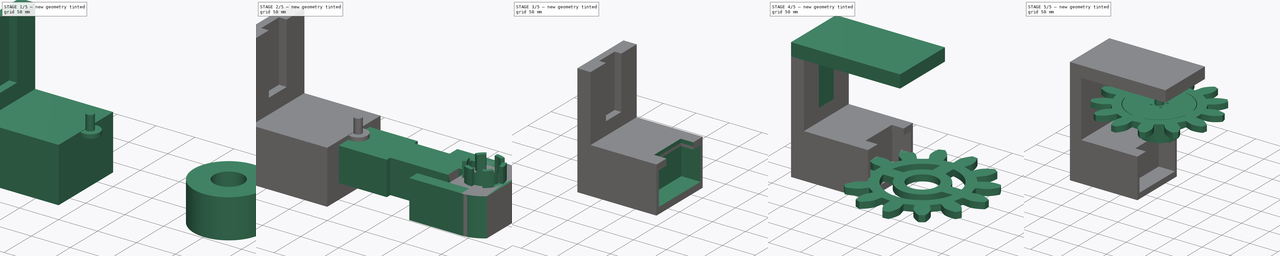
[diagram: build sequence overview — one tinted view per stage of 5, left to right]
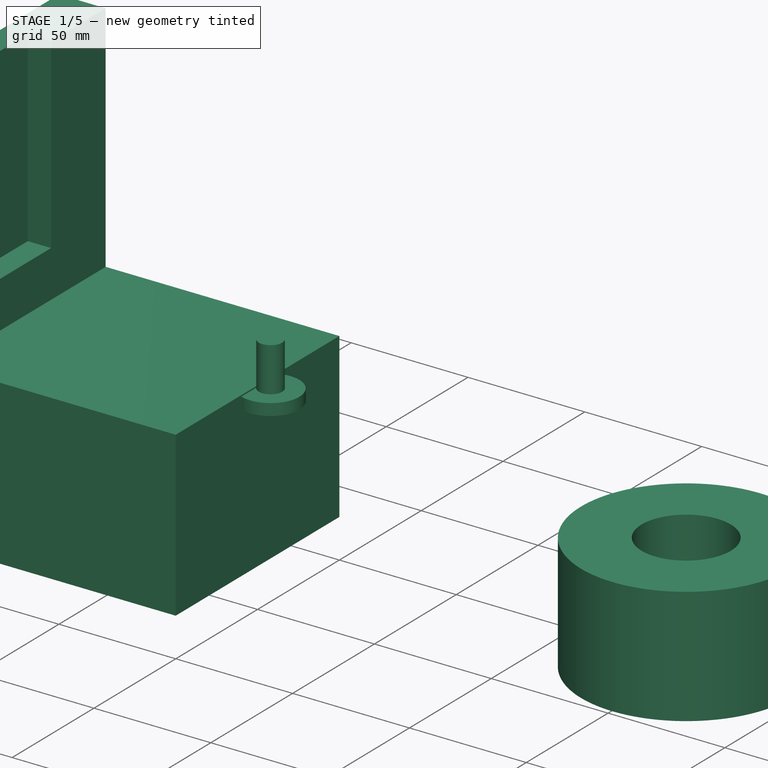
[diagram: stage 1 of 5 — iso view after this stage's code; geometry added in this stage tinted green]
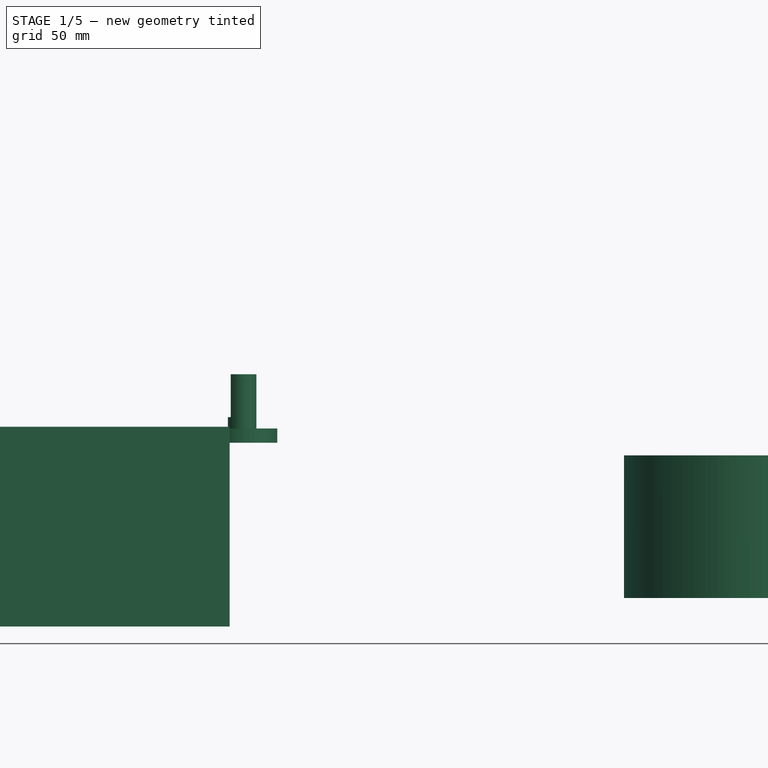
[diagram: stage 1 of 5 — front view after this stage's code; geometry added in this stage tinted green]
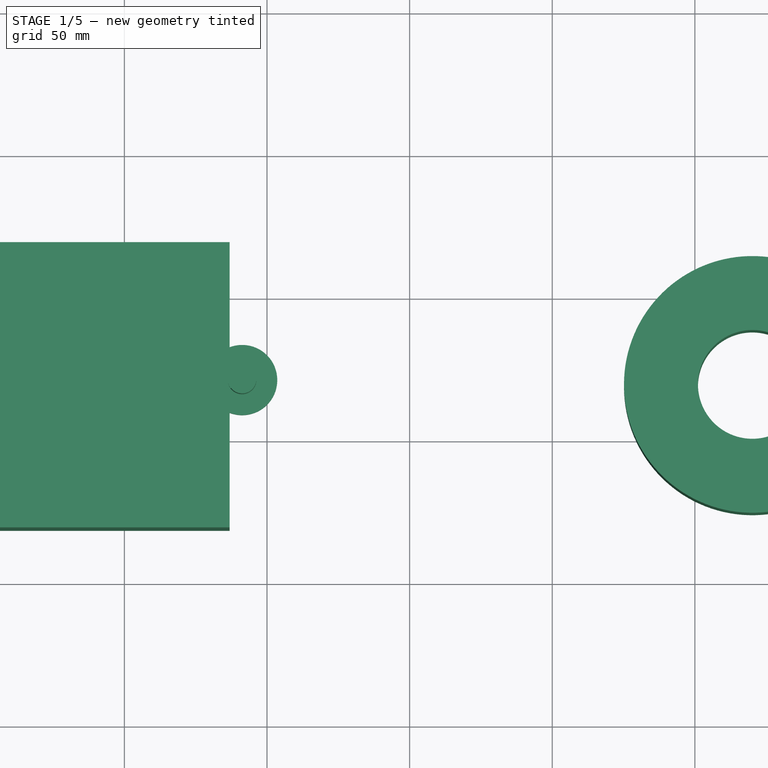
[diagram: stage 1 of 5 — top view after this stage's code; geometry added in this stage tinted green]
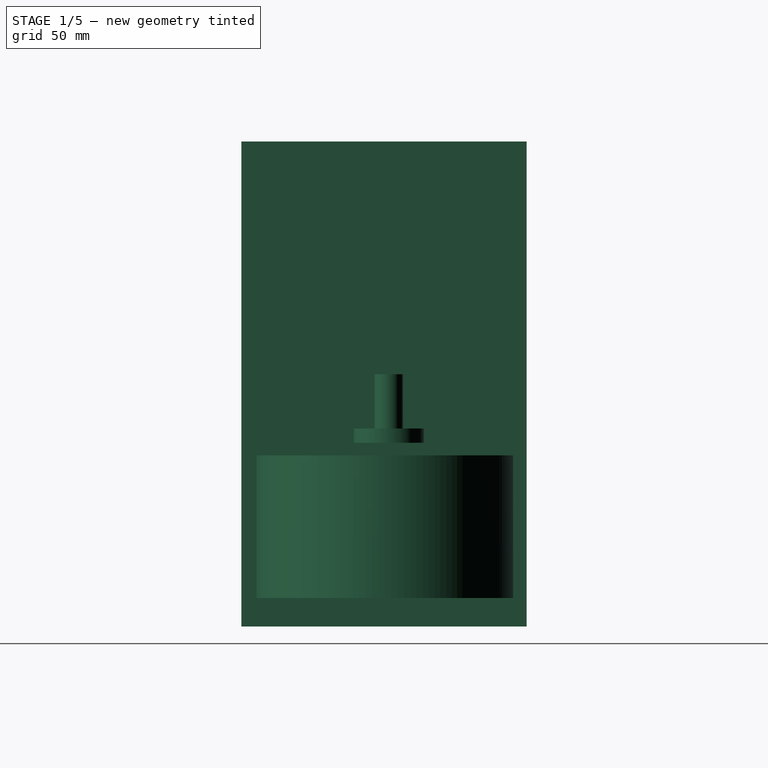
[diagram: stage 1 of 5 — right view after this stage's code; geometry added in this stage tinted green]
FCSTD DOCUMENT  (FreeCAD 0.20R29177 +426 (Git))
Label: PotMount
License: All rights reserved
LicenseURL: http://en.wikipedia.org/wiki/All_rights_reserved
objects: Sketcher::SketchObject×17, Part::Extrusion×16, Part::Box×13, Part::Cut×11, Part::MultiFuse×9, Part::Cylinder×3, Part::FeaturePython×3
note: 72 computed .brp shape members not serialized (recipe doc carries the construction recipe); baked Part::Feature solids carry a one-line shape summary decoded from their .brp

FEATURE [Part::Box] Box001  label="MotorHead"
  AttacherType = Attacher::AttachEngine3D
  Height = 44.4
  Length = 82
  Placement = pos=(-82,-9.63,0) rot=(0,0,1;0rad)
  Width = 58
FEATURE [Sketcher::SketchObject] Sketch010
  ExternalGeometry = -> [Box001]
  FullyConstrained = true
  MapMode = 5
  Placement = pos=(-82,-9.63,44.4) rot=(0,0,1;0rad)
  Support = -> [Box001]
  sketch-geometry (2):
    g0: Circle CenterX=23.3 CenterY=30 CenterZ=0 NormalX=0 NormalY=0 NormalZ=1 AngleXU=0 Radius=12.3
    g1: GeomPoint X=23.3 Y=58 Z=0
  constraints (5):
    c: DistanceX(g0) = 23.3
    c: PointOnObject(g1,g-4)
    c: DistanceX(g-4,g1) = 23.3
    c: DistanceY(g0,g1) = 28
    c: Diameter(g0) = 24.6
FEATURE [Part::Extrusion] Extrude010  label="MotorShaftBasePlate"
  Base = -> Sketch010
  Dir = (0,0,1)
  DirMode = 2
  FaceMakerClass = Part::FaceMakerBullseye
  LengthFwd = 5
  LengthRev = 0
  Solid = true
  Symmetric = false
FEATURE [Sketcher::SketchObject] Sketch001
  ExternalGeometry = -> [Extrude010,Box001]
  FullyConstrained = true
  MapMode = 5
  Placement = pos=(0,0,49.4) rot=(0,0,1;0rad)
  Support = -> [Extrude010]
  sketch-geometry (3):
    g0: GeomPoint X=-82 Y=20.37 Z=0
    g1: GeomPoint X=-58.7 Y=48.37 Z=0
    g2: Circle CenterX=-58.7 CenterY=20.37 CenterZ=0 NormalX=0 NormalY=0 NormalZ=1 AngleXU=0 Radius=5
  constraints (6):
    c: PointOnObject(g0,g-4)
    c: PointOnObject(g1,g-5)
    c: DistanceY(g0,g-5) = 28
    c: DistanceX(g-5,g1) = 23.3
    c: Diameter(g2) = 10
    c: Coincident(g2,g-3)
FEATURE [Part::Extrusion] Extrude001  label="MotorShaftFull"
  Base = -> Sketch001
  Dir = (0,0,1)
  DirMode = 2
  FaceMakerClass = Part::FaceMakerBullseye
  LengthFwd = 4
  LengthRev = 0
  Solid = true
  Symmetric = false
FEATURE [Sketcher::SketchObject] Sketch002
  ExternalGeometry = -> [Extrude001]
  FullyConstrained = true
  MapMode = 5
  Placement = pos=(0,0,53.4) rot=(0,0,1;0rad)
  Support = -> [Extrude001]
  sketch-geometry (2):
    g0: LineSegment StartX=-62.7 StartY=23.37 StartZ=0 EndX=-62.7 EndY=17.37 EndZ=0
    g1: ArcOfCircle CenterX=-58.7 CenterY=20.37 CenterZ=0 NormalX=0 NormalY=0 NormalZ=1 AngleXU=0 Radius=5 StartAngle=3.78509 EndAngle=8.78128
  constraints (6):
    c: PointOnObject(g0,g-3)
    c: Vertical(g0)
    c: Coincident(g1,g-3)
    c: Coincident(g1,g0)
    c: Coincident(g1,g0)
    c: DistanceX(g0,g1) = 4
FEATURE [Part::Extrusion] Extrude002  label="MotorShaftD"
  Base = -> Sketch002
  Dir = (0,0,1)
  DirMode = 2
  FaceMakerClass = Part::FaceMakerBullseye
  LengthFwd = 15
  LengthRev = 0
  Solid = true
  Symmetric = false
FEATURE [Part::MultiFuse] Fusion002  label="MotorShaftAssembly"
  Shapes = -> [Extrude010,Extrude001,Extrude002]
FEATURE [Part::FeaturePython] Tube  label="SteeringShaftMount"  # WARN: FeaturePython — macro-defined, semantics opaque (R4)
  AttacherType = Attacher::AttachEngine3D
  Height = 50
  InnerRadius = 19.07
  OuterRadius = 45
  Placement = pos=(120.15,19,-10) rot=(0,0,1;0rad)
FEATURE [Part::Box] Box017  label="Cube"
  AttacherType = Attacher::AttachEngine3D
  Height = 70
  Length = 120
  Placement = pos=(-183.1,-31.3,-20) rot=(0,0,1;0rad)
  Width = 100
FEATURE [Sketcher::SketchObject] Sketch
  FullyConstrained = true
  MapMode = 5
  Placement = pos=(-183.1,-31.3,50) rot=(0,0,1;0rad)
  Support = -> [Box017]
  sketch-geometry (4):
    g0: LineSegment StartX=20 StartY=0 StartZ=0 EndX=20 EndY=100 EndZ=0
    g1: LineSegment StartX=20 StartY=100 StartZ=0 EndX=0 EndY=100 EndZ=0
    g2: LineSegment StartX=0 StartY=100 StartZ=0 EndX=0 EndY=0 EndZ=0
    g3: LineSegment StartX=0 StartY=0 StartZ=0 EndX=20 EndY=0 EndZ=0
  constraints (11):
    c: PointOnObject(g0,g-1)
    c: Vertical(g0)
    c: Coincident(g1,g0)
    c: PointOnObject(g1,g-2)
    c: Horizontal(g1)
    c: Distance(g1) = 20
    c: Distance(g0) = 100
    c: Coincident(g2,g1)
    c: Coincident(g2,g-1)
    c: Coincident(g3,g2)
    c: Coincident(g3,g0)
FEATURE [Part::Extrusion] Extrude
  Base = -> Sketch
  Dir = (0,0,1)
  DirMode = 2
  FaceMakerClass = Part::FaceMakerBullseye
  LengthFwd = 100
  LengthRev = 0
  Solid = true
  Symmetric = false
FEATURE [Sketcher::SketchObject] Sketch016
  ExternalGeometry = -> [Extrude]
  FullyConstrained = true
  MapMode = 5
  Placement = pos=(0,0,150) rot=(0,0,1;0rad)
  Support = -> [Extrude]
  sketch-geometry (6):
    g0: LineSegment StartX=-163.1 StartY=2.03333 StartZ=0 EndX=-163.1 EndY=-31.3 EndZ=0
    g1: LineSegment StartX=-163.1 StartY=68.7 StartZ=0 EndX=-163.1 EndY=35.3667 EndZ=0
    g2: LineSegment StartX=-163.1 StartY=35.3667 StartZ=0 EndX=-163.1 EndY=2.03333 EndZ=0
    g3: LineSegment StartX=-163.1 StartY=35.3667 StartZ=0 EndX=-173.1 EndY=35.3667 EndZ=0
    g4: LineSegment StartX=-173.1 StartY=35.3667 StartZ=0 EndX=-173.1 EndY=2.03333 EndZ=0
    g5: LineSegment StartX=-173.1 StartY=2.03333 StartZ=0 EndX=-163.1 EndY=2.03333 EndZ=0
  constraints (16):
    c: Coincident(g1,g-3)
    c: Coincident(g0,g-3)
    c: Coincident(g2,g0)
    c: Coincident(g1,g2)
    c: Equal(g1,g2)
    c: Equal(g0,g2)
    c: Parallel(g1,g2)
    c: Parallel(g2,g0)
    c: Coincident(g3,g1)
    c: Horizontal(g3)
    c: Coincident(g4,g3)
    c: Vertical(g4)
    c: Coincident(g5,g4)
    c: Coincident(g5,g0)
    c: Perpendicular(g5,g4)
    c: Distance(g5) = 10
FEATURE [Part::Extrusion] Extrude016
  Base = -> Sketch016
  Dir = (0,0,1)
  DirMode = 2
  FaceMakerClass = Part::FaceMakerBullseye
  LengthFwd = 0
  LengthRev = 80
  Solid = true
  Symmetric = false
FEATURE [Part::Cut] Cut015
  Base = -> Extrude
  Tool = -> Extrude016
FEATURE [Part::MultiFuse] Fusion013
  Shapes = -> [Box017,Cut015]
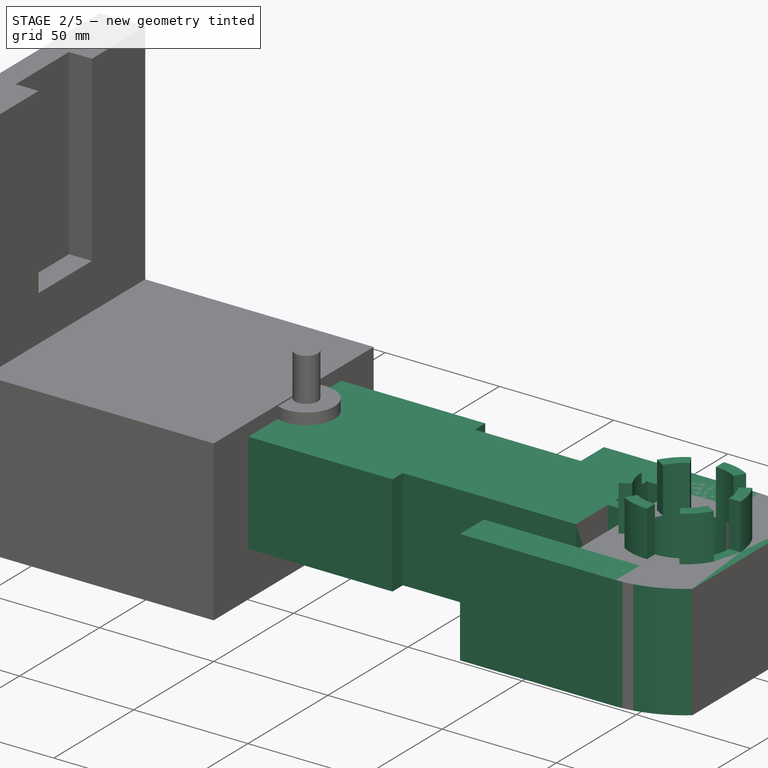
[diagram: stage 2 of 5 — iso view after this stage's code; geometry added in this stage tinted green]
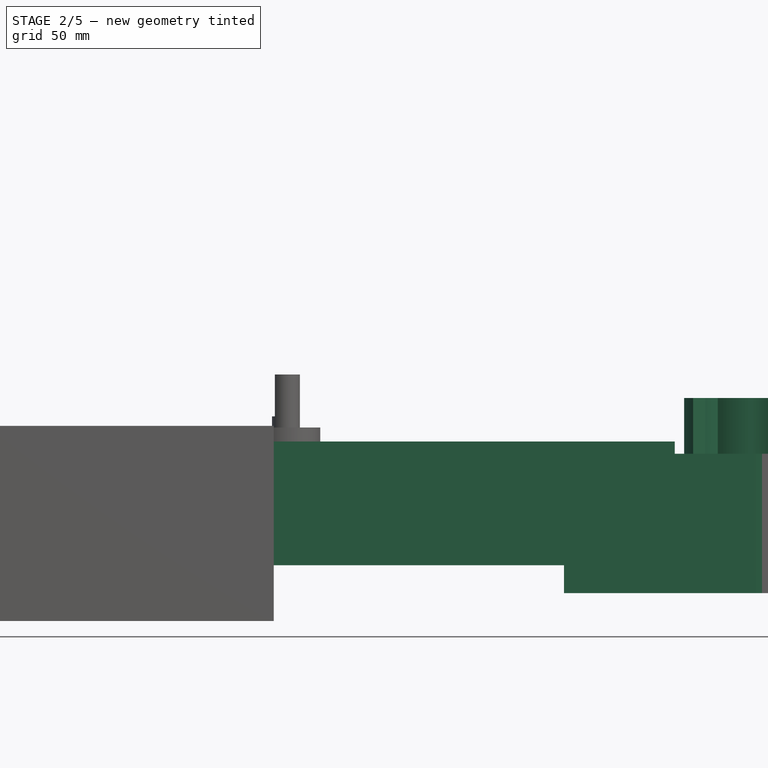
[diagram: stage 2 of 5 — front view after this stage's code; geometry added in this stage tinted green]
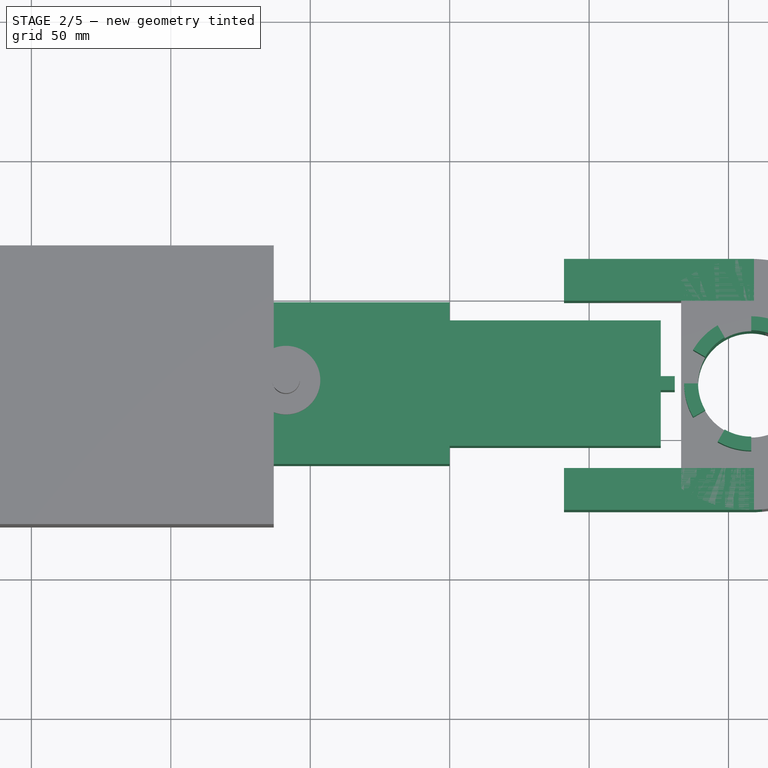
[diagram: stage 2 of 5 — top view after this stage's code; geometry added in this stage tinted green]
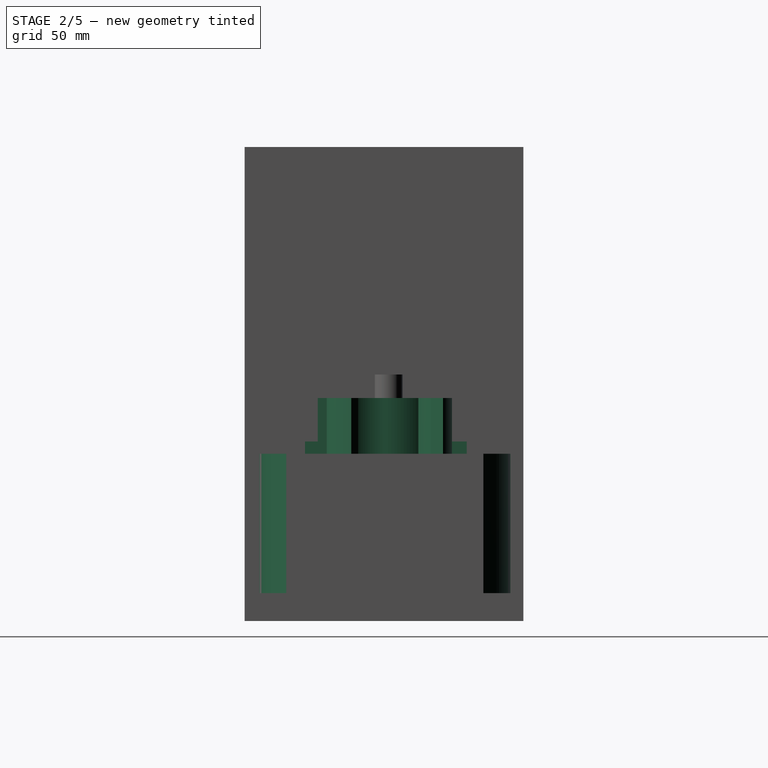
[diagram: stage 2 of 5 — right view after this stage's code; geometry added in this stage tinted green]
FEATURE [Part::Box] Box  label="MotorCyclinder"
  AttacherType = Attacher::AttachEngine3D
  Height = 44.4
  Length = 75.7
  Placement = pos=(0,-3.13,0) rot=(0,0,1;0rad)
  Width = 45
FEATURE [Part::Box] Box008  label="Cube008"
  AttacherType = Attacher::AttachEngine3D
  Height = 50
  Length = 68.15
  Placement = pos=(41,-26,-10) rot=(0,0,1;0rad)
  Width = 15
FEATURE [Part::Box] Box009  label="Cube009"
  AttacherType = Attacher::AttachEngine3D
  Height = 50
  Length = 68.15
  Placement = pos=(41,49,-10) rot=(0,0,1;0rad)
  Width = 15
FEATURE [Part::Box] Box010  label="RoundOff"
  AttacherType = Attacher::AttachEngine3D
  Height = 60
  Length = 40
  Placement = pos=(55,-34,-17) rot=(0,0,1;0rad)
  Width = 120
FEATURE [Part::Box] Box011  label="NubChannel"
  AttacherType = Attacher::AttachEngine3D
  Height = 44.4
  Length = 5
  Placement = pos=(75.7,16.87,0) rot=(0,0,1;0rad)
  Width = 5
FEATURE [Part::Box] Box012  label="SteeringShaftCutter"
  AttacherType = Attacher::AttachEngine3D
  Height = 70
  Length = 30
  Placement = pos=(136,-31,-14) rot=(0,0,1;0rad)
  Width = 100
FEATURE [Part::MultiFuse] Fusion005  label="Motor"
  Shapes = -> [Box,Box001,Box011,Fusion002]
FEATURE [Part::Cut] Cut005  label="SteeringShaftMountD"
  Base = -> Tube
  Tool = -> Box010
FEATURE [Sketcher::SketchObject] Sketch003
  ExternalGeometry = -> [Tube]
  FullyConstrained = true
  MapMode = 5
  Placement = pos=(120.15,19,40) rot=(0,0,1;0rad)
  Support = -> [Tube]
  sketch-geometry (42):
    g0: Circle CenterX=0 CenterY=2.9e-15 CenterZ=0 NormalX=0 NormalY=0 NormalZ=1 AngleXU=0 Radius=24.075
    g1: ArcOfCircle CenterX=0 CenterY=2.9e-15 CenterZ=0 NormalX=0 NormalY=0 NormalZ=1 AngleXU=0 Radius=24.075 StartAngle=1.0472 EndAngle=1.5708
    g2: LineSegment StartX=0 StartY=2.9e-15 StartZ=0 EndX=12.0375 EndY=20.8496 EndZ=0
    g3: LineSegment StartX=0 StartY=2.9e-15 StartZ=0 EndX=0 EndY=24.075 EndZ=0
    g4: ArcOfCircle CenterX=0 CenterY=2.9e-15 CenterZ=0 NormalX=0 NormalY=0 NormalZ=1 AngleXU=0 Radius=19.075 StartAngle=1.0472 EndAngle=1.5708
    g5: LineSegment StartX=0 StartY=24.075 StartZ=0 EndX=1.2e-15 EndY=19.075 EndZ=0
    g6: LineSegment StartX=12.0375 StartY=20.8496 StartZ=0 EndX=9.5375 EndY=16.5194 EndZ=0
    g7: ArcOfCircle CenterX=0 CenterY=2.9e-15 CenterZ=0 NormalX=0 NormalY=0 NormalZ=1 AngleXU=0 Radius=24.075 StartAngle=0.523599 EndAngle=1.0472
    g8: ArcOfCircle CenterX=0 CenterY=2.9e-15 CenterZ=0 NormalX=0 NormalY=0 NormalZ=1 AngleXU=0 Radius=24.075 StartAngle=0 EndAngle=0.523599
    g9: LineSegment StartX=0 StartY=2.9e-15 StartZ=0 EndX=20.8496 EndY=12.0375 EndZ=0
    g10: LineSegment StartX=0 StartY=2.9e-15 StartZ=0 EndX=24.075 EndY=-2.9e-15 EndZ=0
    g11: ArcOfCircle CenterX=0 CenterY=2.9e-15 CenterZ=0 NormalX=0 NormalY=0 NormalZ=1 AngleXU=0 Radius=19.07 StartAngle=0 EndAngle=0.523599
    g12: LineSegment StartX=19.07 StartY=2.9e-15 StartZ=0 EndX=24.075 EndY=-2.9e-15 EndZ=0
    g13: LineSegment StartX=16.5151 StartY=9.535 StartZ=0 EndX=20.8496 EndY=12.0375 EndZ=0
    g14: ArcOfCircle CenterX=0 CenterY=2.9e-15 CenterZ=0 NormalX=0 NormalY=0 NormalZ=1 AngleXU=0 Radius=24.075 StartAngle=5.75959 EndAngle=6.28319
    g15: ArcOfCircle CenterX=0 CenterY=2.9e-15 CenterZ=0 NormalX=0 NormalY=0 NormalZ=1 AngleXU=0 Radius=24.075 StartAngle=5.23599 EndAngle=5.75959
    g16: LineSegment StartX=12.0375 StartY=-20.8496 StartZ=0 EndX=0 EndY=3.6e-15 EndZ=0
    g17: LineSegment StartX=0 StartY=2.9e-15 StartZ=0 EndX=20.8496 EndY=-12.0375 EndZ=0
    g18: ArcOfCircle CenterX=0 CenterY=2.9e-15 CenterZ=0 NormalX=0 NormalY=0 NormalZ=1 AngleXU=0 Radius=19.075 StartAngle=5.23599 EndAngle=5.75959
    g19: LineSegment StartX=9.5375 StartY=-16.5194 StartZ=0 EndX=12.0375 EndY=-20.8496 EndZ=0
    g20: LineSegment StartX=16.5194 StartY=-9.5375 StartZ=0 EndX=20.8496 EndY=-12.0375 EndZ=0
    g21: ArcOfCircle CenterX=0 CenterY=2.9e-15 CenterZ=0 NormalX=0 NormalY=0 NormalZ=1 AngleXU=0 Radius=24.075 StartAngle=4.71239 EndAngle=5.23599
    g22: ArcOfCircle CenterX=0 CenterY=2.9e-15 CenterZ=0 NormalX=0 NormalY=0 NormalZ=1 AngleXU=0 Radius=24.075 StartAngle=4.18879 EndAngle=4.71239
    g23: LineSegment StartX=0 StartY=2.9e-15 StartZ=0 EndX=-4.4e-15 EndY=-24.075 EndZ=0
    g24: LineSegment StartX=0 StartY=2.9e-15 StartZ=0 EndX=-12.0375 EndY=-20.8496 EndZ=0
    g25: ArcOfCircle CenterX=0 CenterY=2.9e-15 CenterZ=0 NormalX=0 NormalY=0 NormalZ=1 AngleXU=0 Radius=19.07 StartAngle=4.18879 EndAngle=4.71239
    g26: LineSegment StartX=-12.0375 StartY=-20.8496 StartZ=0 EndX=-9.535 EndY=-16.5151 EndZ=0
    g27: LineSegment StartX=-3.5e-15 StartY=-19.07 StartZ=0 EndX=-4.4e-15 EndY=-24.075 EndZ=0
    g28: ArcOfCircle CenterX=0 CenterY=2.9e-15 CenterZ=0 NormalX=0 NormalY=0 NormalZ=1 AngleXU=0 Radius=24.075 StartAngle=3.66519 EndAngle=4.18879
    g29: ArcOfCircle CenterX=0 CenterY=2.9e-15 CenterZ=0 NormalX=0 NormalY=0 NormalZ=1 AngleXU=0 Radius=24.075 StartAngle=3.14159 EndAngle=3.66519
    g30: LineSegment StartX=-20.8496 StartY=-12.0375 StartZ=0 EndX=0 EndY=3.6e-15 EndZ=0
    g31: LineSegment StartX=0 StartY=2.9e-15 StartZ=0 EndX=-24.075 EndY=2.9e-15 EndZ=0
    g32: ArcOfCircle CenterX=0 CenterY=2.9e-15 CenterZ=0 NormalX=0 NormalY=0 NormalZ=1 AngleXU=0 Radius=19.07 StartAngle=3.14159 EndAngle=3.66519
    g33: LineSegment StartX=-19.07 StartY=2.9e-15 StartZ=0 EndX=-24.075 EndY=2.9e-15 EndZ=0
    g34: LineSegment StartX=-20.8496 StartY=-12.0375 StartZ=0 EndX=-16.5151 EndY=-9.535 EndZ=0
    g35: ArcOfCircle CenterX=0 CenterY=2.9e-15 CenterZ=0 NormalX=0 NormalY=0 NormalZ=1 AngleXU=0 Radius=24.075 StartAngle=2.61799 EndAngle=3.14159
    g36: ArcOfCircle CenterX=0 CenterY=2.9e-15 CenterZ=0 NormalX=0 NormalY=0 NormalZ=1 AngleXU=0 Radius=24.075 StartAngle=2.0944 EndAngle=2.61799
    g37: LineSegment StartX=0 StartY=2.9e-15 StartZ=0 EndX=-12.0375 EndY=20.8496 EndZ=0
    g38: LineSegment StartX=-20.8496 StartY=12.0375 StartZ=0 EndX=0 EndY=3.6e-15 EndZ=0
    g39: ArcOfCircle CenterX=0 CenterY=2.9e-15 CenterZ=0 NormalX=0 NormalY=0 NormalZ=1 AngleXU=0 Radius=19.075 StartAngle=2.0944 EndAngle=2.61799
    g40: LineSegment StartX=-16.5194 StartY=9.5375 StartZ=0 EndX=-20.8496 EndY=12.0375 EndZ=0
    g41: LineSegment StartX=-12.0375 StartY=20.8496 StartZ=0 EndX=-9.5375 EndY=16.5194 EndZ=0
  constraints (109):
    c: Coincident(g0,g-4)
    c: Radius(g0) = 24.075
    c: Coincident(g1,g0)
    c: PointOnObject(g1,g0)
    c: Angle(g1) = 0.523599
    c: Coincident(g2,g0)
    c: Coincident(g2,g1)
    c: Coincident(g3,g0)
    c: Coincident(g3,g1)
    c: Vertical(g3)
    c: Coincident(g4,g0)
    c: PointOnObject(g4,g3)
    c: PointOnObject(g4,g2)
    c: Radius(g4) = 19.075
    c: Coincident(g5,g1)
    c: Coincident(g5,g4)
    c: Coincident(g6,g1)
    c: Coincident(g6,g4)
    c: Coincident(g7,g0)
    c: Coincident(g7,g1)
    c: Angle(g7) = 0.523599
    c: Coincident(g8,g0)
    c: Coincident(g8,g7)
    c: Angle(g8) = 0.523599
    c: Coincident(g9,g0)
    c: Coincident(g9,g7)
    c: Coincident(g10,g0)
    c: Coincident(g10,g8)
    c: Coincident(g11,g0)
    c: PointOnObject(g11,g-3)
    c: Angle(g11) = 0.523599
    c: PointOnObject(g11,g9)
    c: Coincident(g12,g11)
    c: Coincident(g12,g8)
    c: Coincident(g13,g11)
    c: Coincident(g13,g7)
    c: Coincident(g14,g0)
    c: Coincident(g14,g8)
    c: Angle(g14) = 0.523599
    c: Coincident(g15,g0)
    c: Coincident(g15,g14)
    c: Angle(g15) = 0.523599
    c: Coincident(g16,g15)
    c: Coincident(g16,g0)
    c: Coincident(g17,g0)
    c: Coincident(g17,g14)
    c: Coincident(g18,g0)
    c: PointOnObject(g18,g17)
    c: PointOnObject(g18,g16)
    c: Radius(g18) = 19.075
    c: Coincident(g19,g18)
    c: Coincident(g19,g15)
    c: Coincident(g20,g18)
    c: Coincident(g20,g14)
    c: Coincident(g21,g0)
    c: Coincident(g21,g15)
    c: Angle(g21) = 0.523599
    c: Coincident(g22,g0)
    c: Coincident(g22,g21)
    c: Angle(g22) = 0.523599
    c: Coincident(g23,g0)
    c: Coincident(g23,g21)
    c: Coincident(g24,g0)
    c: Coincident(g24,g22)
    c: Coincident(g25,g0)
    c: PointOnObject(g25,g23)
    c: PointOnObject(g25,g-3)
    c: Angle(g25) = 0.523599
    c: Coincident(g26,g22)
    c: Coincident(g26,g25)
    c: Coincident(g27,g25)
    c: Coincident(g27,g21)
    c: Coincident(g28,g0)
    c: PointOnObject(g28,g22)
    c: Angle(g28) = 0.523599
    c: Coincident(g29,g0)
    c: Coincident(g29,g28)
    c: Angle(g29) = 0.523599
    c: Coincident(g30,g28)
    c: Coincident(g30,g0)
    c: Coincident(g31,g0)
    c: Coincident(g31,g29)
    c: Horizontal(g31)
    c: Coincident(g32,g0)
    c: PointOnObject(g32,g-3)
    c: Coincident(g33,g32)
    c: Coincident(g33,g29)
    c: Horizontal(g33)
    c: Coincident(g34,g28)
    c: Coincident(g34,g32)
    c: Angle(g32) = 0.523599
    c: Coincident(g35,g0)
    c: Coincident(g35,g29)
    c: Angle(g35) = 0.523599
    c: Coincident(g36,g0)
    c: Coincident(g36,g35)
    c: Angle(g36) = 0.523599
    c: Coincident(g37,g0)
    c: Coincident(g37,g36)
    c: Coincident(g38,g35)
    c: Coincident(g38,g0)
    c: Coincident(g39,g0)
    c: PointOnObject(g39,g38)
    c: PointOnObject(g39,g37)
    c: Radius(g39) = 19.075
    c: Coincident(g40,g39)
    c: Coincident(g40,g35)
    c: Coincident(g41,g36)
    c: Coincident(g41,g39)
FEATURE [Sketcher::SketchObject] Sketch004
  ExternalGeometry = -> [Sketch003]
  FullyConstrained = true
  MapMode = 5
  Placement = pos=(120.15,19,40) rot=(0,0,1;0rad)
  Support = -> [Tube]
  sketch-geometry (24):
    g0: LineSegment StartX=16.5194 StartY=-9.5375 StartZ=0 EndX=20.8496 EndY=-12.0375 EndZ=0
    g1: ArcOfCircle CenterX=0 CenterY=0 CenterZ=0 NormalX=0 NormalY=0 NormalZ=1 AngleXU=0 Radius=19.075 StartAngle=5.23599 EndAngle=5.75959
    g2: ArcOfCircle CenterX=0 CenterY=0 CenterZ=0 NormalX=0 NormalY=0 NormalZ=1 AngleXU=0 Radius=24.075 StartAngle=5.23599 EndAngle=5.75959
    g3: LineSegment StartX=12.0375 StartY=-20.8496 StartZ=0 EndX=9.5375 EndY=-16.5194 EndZ=0
    g4: LineSegment StartX=-4.4e-15 StartY=-24.075 StartZ=0 EndX=-3.5e-15 EndY=-19.07 EndZ=0
    g5: LineSegment StartX=-9.535 StartY=-16.5151 StartZ=0 EndX=-12.0375 EndY=-20.8496 EndZ=0
    g6: LineSegment StartX=-20.8496 StartY=-12.0375 StartZ=0 EndX=-16.5151 EndY=-9.535 EndZ=0
    g7: LineSegment StartX=-19.07 StartY=2.3e-15 StartZ=0 EndX=-24.075 EndY=2.9e-15 EndZ=0
    g8: LineSegment StartX=-16.5194 StartY=9.5375 StartZ=0 EndX=-20.8496 EndY=12.0375 EndZ=0
    g9: LineSegment StartX=-12.0375 StartY=20.8496 StartZ=0 EndX=-9.5375 EndY=16.5194 EndZ=0
    g10: LineSegment StartX=1.5e-15 StartY=24.075 StartZ=0 EndX=1.2e-15 EndY=19.075 EndZ=0
    g11: LineSegment StartX=9.5375 StartY=16.5194 StartZ=0 EndX=12.0375 EndY=20.8496 EndZ=0
    g12: LineSegment StartX=16.5151 StartY=9.535 StartZ=0 EndX=20.8496 EndY=12.0375 EndZ=0
    g13: LineSegment StartX=19.07 StartY=0 StartZ=0 EndX=24.075 EndY=0 EndZ=0
    g14: ArcOfCircle CenterX=0 CenterY=0 CenterZ=0 NormalX=0 NormalY=0 NormalZ=1 AngleXU=0 Radius=19.07 StartAngle=4.18879 EndAngle=4.71239
    g15: ArcOfCircle CenterX=0 CenterY=0 CenterZ=0 NormalX=0 NormalY=0 NormalZ=1 AngleXU=0 Radius=24.075 StartAngle=4.18879 EndAngle=4.71239
    g16: ArcOfCircle CenterX=0 CenterY=0 CenterZ=0 NormalX=0 NormalY=0 NormalZ=1 AngleXU=0 Radius=24.075 StartAngle=3.14159 EndAngle=3.66519
    g17: ArcOfCircle CenterX=0 CenterY=0 CenterZ=0 NormalX=0 NormalY=0 NormalZ=1 AngleXU=0 Radius=19.07 StartAngle=3.14159 EndAngle=3.66519
    g18: ArcOfCircle CenterX=0 CenterY=0 CenterZ=0 NormalX=0 NormalY=0 NormalZ=1 AngleXU=0 Radius=19.075 StartAngle=2.0944 EndAngle=2.61799
    g19: ArcOfCircle CenterX=0 CenterY=0 CenterZ=0 NormalX=0 NormalY=0 NormalZ=1 AngleXU=0 Radius=24.075 StartAngle=2.0944 EndAngle=2.61799
    g20: ArcOfCircle CenterX=0 CenterY=0 CenterZ=0 NormalX=0 NormalY=0 NormalZ=1 AngleXU=0 Radius=24.075 StartAngle=1.0472 EndAngle=1.5708
    g21: ArcOfCircle CenterX=0 CenterY=0 CenterZ=0 NormalX=0 NormalY=0 NormalZ=1 AngleXU=0 Radius=19.075 StartAngle=1.0472 EndAngle=1.5708
    g22: ArcOfCircle CenterX=0 CenterY=0 CenterZ=0 NormalX=0 NormalY=0 NormalZ=1 AngleXU=0 Radius=19.07 StartAngle=0 EndAngle=0.523599
    g23: ArcOfCircle CenterX=0 CenterY=0 CenterZ=0 NormalX=0 NormalY=0 NormalZ=1 AngleXU=0 Radius=24.075 StartAngle=0 EndAngle=0.523599
  constraints (60):
    c: Coincident(g0,g-14)
    c: Coincident(g0,g-8)
    c: Coincident(g1,g-16)
    c: Coincident(g1,g0)
    c: Coincident(g1,g-21)
    c: Coincident(g2,g1)
    c: Coincident(g2,g0)
    c: Coincident(g2,g-21)
    c: Coincident(g3,g2)
    c: Coincident(g3,g1)
    c: Coincident(g4,g-22)
    c: Coincident(g4,g-22)
    c: Coincident(g5,g-20)
    c: Coincident(g5,g-20)
    c: PointOnObject(g6,g-19)
    c: Coincident(g6,g-19)
    c: Coincident(g7,g-23)
    c: Coincident(g7,g-23)
    c: Coincident(g8,g-18)
    c: Coincident(g8,g-18)
    c: Coincident(g9,g-17)
    c: Coincident(g9,g-17)
    c: Coincident(g10,g-6)
    c: Coincident(g10,g-4)
    c: Coincident(g11,g-5)
    c: Coincident(g11,g-6)
    c: Coincident(g12,g-24)
    c: Coincident(g12,g-24)
    c: Coincident(g13,g-13)
    c: Coincident(g13,g-7)
    c: Coincident(g14,g1)
    c: Coincident(g14,g5)
    c: Coincident(g14,g4)
    c: Coincident(g15,g1)
    c: Coincident(g15,g5)
    c: Coincident(g15,g4)
    c: Coincident(g16,g1)
    c: Coincident(g16,g6)
    c: Coincident(g16,g7)
    c: Coincident(g17,g1)
    c: Coincident(g17,g6)
    c: Coincident(g17,g7)
    c: Coincident(g18,g1)
    c: Coincident(g18,g8)
    c: Coincident(g18,g9)
    c: Coincident(g19,g1)
    c: Coincident(g19,g8)
    c: Coincident(g19,g9)
    c: Coincident(g20,g1)
    c: Coincident(g20,g10)
    c: Coincident(g20,g11)
    c: Coincident(g21,g1)
    c: Coincident(g21,g10)
    c: Coincident(g21,g11)
    c: Coincident(g22,g1)
    c: Coincident(g22,g12)
    c: Coincident(g22,g13)
    c: Coincident(g23,g1)
    c: Coincident(g23,g12)
    c: Coincident(g23,g13)
FEATURE [Part::Extrusion] Extrude003  label="Fingers"
  Base = -> Sketch004
  Dir = (0,0,1)
  DirMode = 2
  FaceMakerClass = Part::FaceMakerBullseye
  LengthFwd = 25
  LengthRev = 0
  Placement = pos=(0,0,-5) rot=(0,0,1;0rad)
  Solid = true
  Symmetric = false
FEATURE [Part::MultiFuse] Fusion004
  Placement = pos=(-12,0,0) rot=(0,0,1;0rad)
  Shapes = -> [Cut005,Extrude003]
FEATURE [Part::Cut] Cut006  label="SteeringShaftCutDown"
  Base = -> Fusion004
  Tool = -> Box012
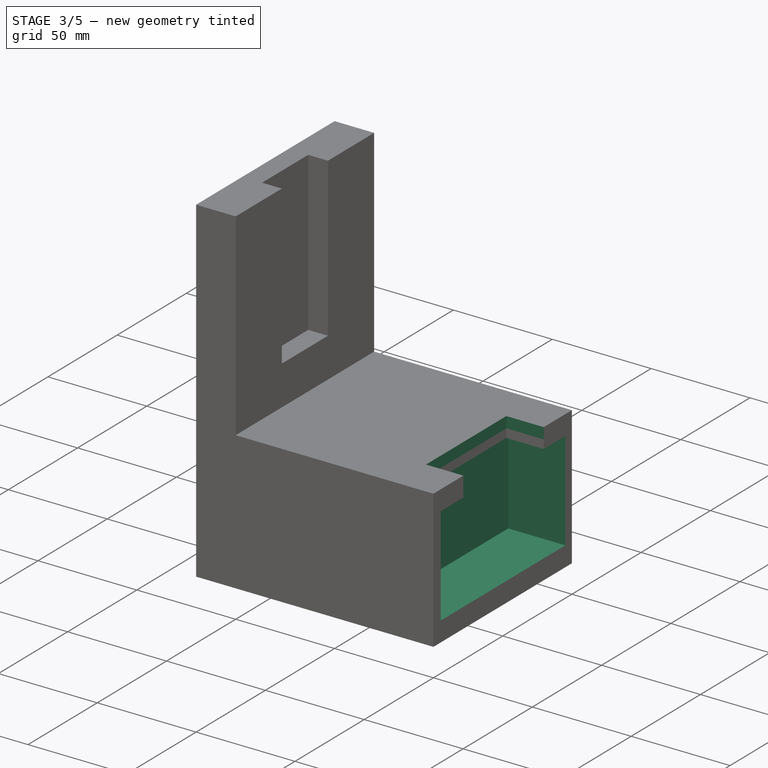
[diagram: stage 3 of 5 — iso view after this stage's code; geometry added in this stage tinted green]
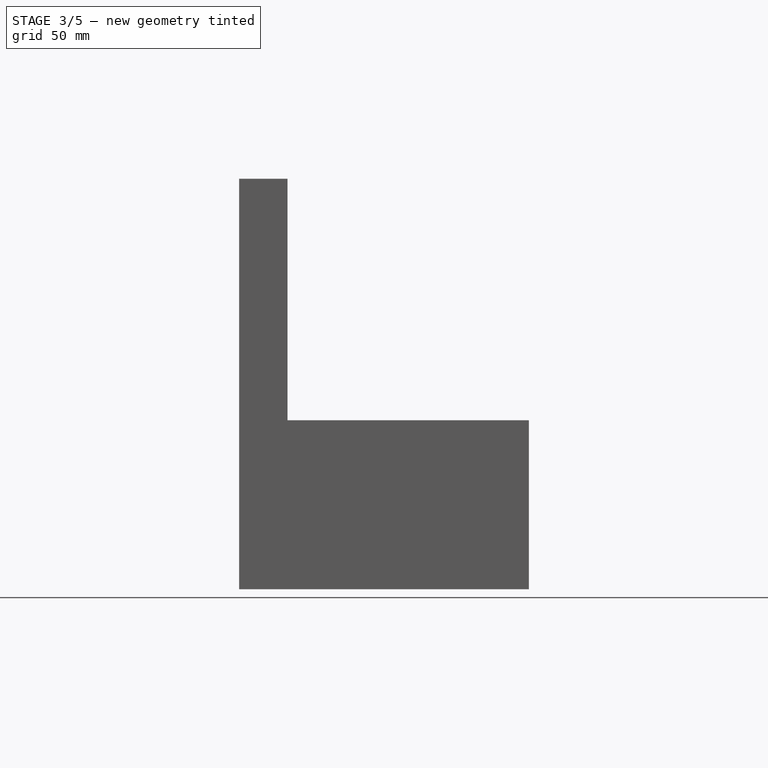
[diagram: stage 3 of 5 — front view after this stage's code; geometry added in this stage tinted green]
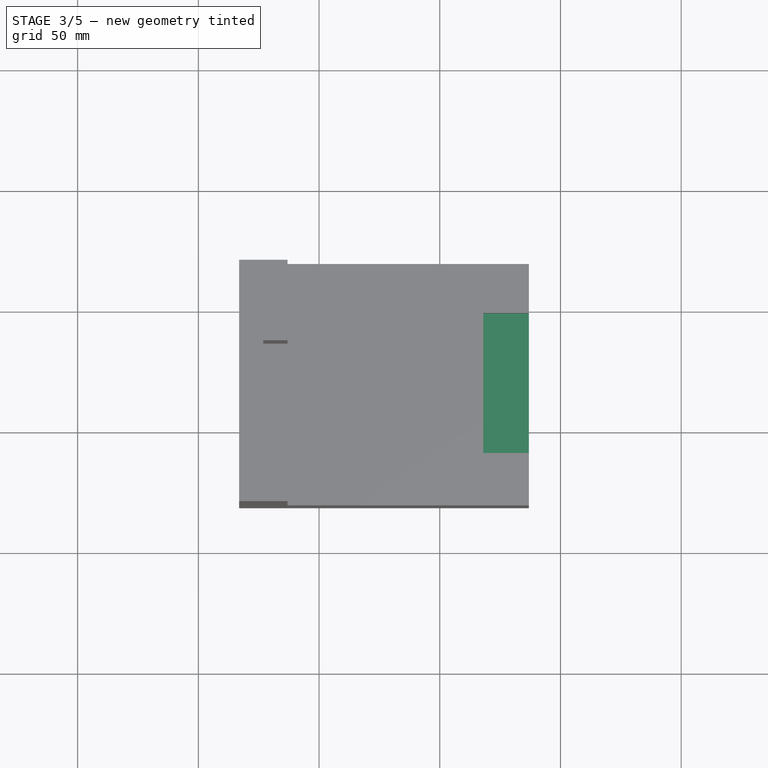
[diagram: stage 3 of 5 — top view after this stage's code; geometry added in this stage tinted green]
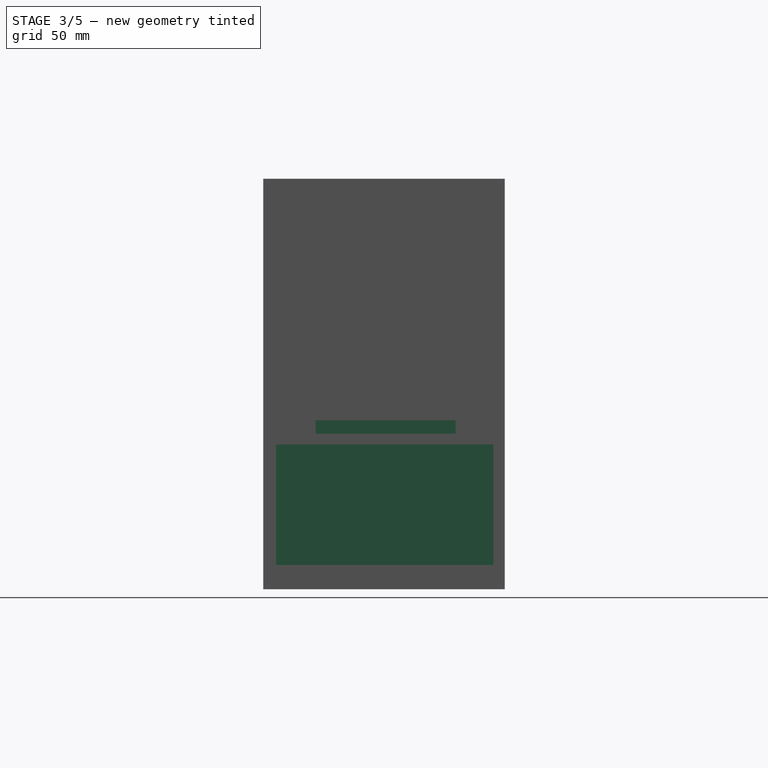
[diagram: stage 3 of 5 — right view after this stage's code; geometry added in this stage tinted green]
FEATURE [Part::Box] Box002  label="MotorCastOuter"
  AttacherType = Attacher::AttachEngine3D
  Height = 50
  Length = 175
  Placement = pos=(-92,-26,-10) rot=(0,0,1;0rad)
  Width = 90
FEATURE [Part::Cylinder] Cylinder  label="ThroughHoleCylinder2"
  Angle = 360
  AttacherType = Attacher::AttachEngine3D
  FirstAngle = 0
  Height = 70
  Placement = pos=(-86,-18,-20) rot=(0,0,1;0rad)
  Radius = 2.5
  SecondAngle = 0
FEATURE [Part::Cylinder] Cylinder002  label="ThroughHoleCylinder1"
  Angle = 360
  AttacherType = Attacher::AttachEngine3D
  FirstAngle = 0
  Height = 70
  Placement = pos=(-86,56,-20) rot=(0,0,1;0rad)
  Radius = 2.5
  SecondAngle = 0
FEATURE [Part::MultiFuse] Fusion
  Shapes = -> [Box002,Fusion005,Box008,Box009,Cut006]
FEATURE [Part::Cut] Cut
  Base = -> Fusion
  Tool = -> Cylinder002
FEATURE [Part::Cut] Cut013  label="MotorMount"
  Base = -> Cut
  Tool = -> Cylinder
FEATURE [Part::Cut] Cut016
  Base = -> Fusion013
  Tool = -> Cut013
FEATURE [Sketcher::SketchObject] Sketch020
  ExternalGeometry = -> [Cut016]
  FullyConstrained = true
  MapMode = 5
  Placement = pos=(-92,0,0) rot=(0.57735,0.57735,0.57735;2.0944rad)
  Support = -> [Cut016]
  sketch-geometry (4):
    g0: LineSegment StartX=-26 StartY=40 StartZ=0 EndX=64 EndY=40 EndZ=0
    g1: LineSegment StartX=64 StartY=40 StartZ=0 EndX=64 EndY=-10 EndZ=0
    g2: LineSegment StartX=64 StartY=-10 StartZ=0 EndX=-26 EndY=-10 EndZ=0
    g3: LineSegment StartX=-26 StartY=-10 StartZ=0 EndX=-26 EndY=40 EndZ=0
  constraints (10):
    c: Coincident(g0,g1)
    c: Coincident(g1,g2)
    c: Coincident(g2,g3)
    c: Coincident(g3,g0)
    c: Horizontal(g0)
    c: Horizontal(g2)
    c: Vertical(g1)
    c: Vertical(g3)
    c: Coincident(g0,g-3)
    c: Coincident(g1,g-4)
FEATURE [Part::Extrusion] Extrude020
  Base = -> Sketch020
  Dir = (1,0,0)
  DirMode = 2
  FaceMakerClass = Part::FaceMakerBullseye
  LengthFwd = 200
  LengthRev = 0
  Solid = true
  Symmetric = false
FEATURE [Part::Cut] Cut017
  Base = -> Cut016
  Tool = -> Extrude020
FEATURE [Sketcher::SketchObject] Sketch021
  ExternalGeometry = -> [Cut017]
  FullyConstrained = true
  MapMode = 5
  Placement = pos=(0,0,44.4) rot=(1,0,0;3.14159rad)
  Support = -> [Cut017]
  sketch-geometry (4):
    g0: LineSegment StartX=-63.1 StartY=-48.37 StartZ=0 EndX=-82 EndY=-48.37 EndZ=0
    g1: LineSegment StartX=-82 StartY=-48.37 StartZ=0 EndX=-82 EndY=9.63 EndZ=0
    g2: LineSegment StartX=-82 StartY=9.63 StartZ=0 EndX=-63.1 EndY=9.63 EndZ=0
    g3: LineSegment StartX=-63.1 StartY=9.63 StartZ=0 EndX=-63.1 EndY=-48.37 EndZ=0
  constraints (10):
    c: Coincident(g0,g1)
    c: Coincident(g1,g2)
    c: Coincident(g2,g3)
    c: Coincident(g3,g0)
    c: Horizontal(g0)
    c: Horizontal(g2)
    c: Vertical(g1)
    c: Vertical(g3)
    c: Coincident(g0,g-4)
    c: Coincident(g1,g-3)
FEATURE [Part::Extrusion] Extrude021
  Base = -> Sketch021
  Dir = (0,0,-1)
  DirMode = 2
  FaceMakerClass = Part::FaceMakerBullseye
  LengthFwd = 0
  LengthRev = 10
  Solid = true
  Symmetric = false
FEATURE [Part::Cut] Cut018
  Base = -> Cut017
  Tool = -> Extrude021
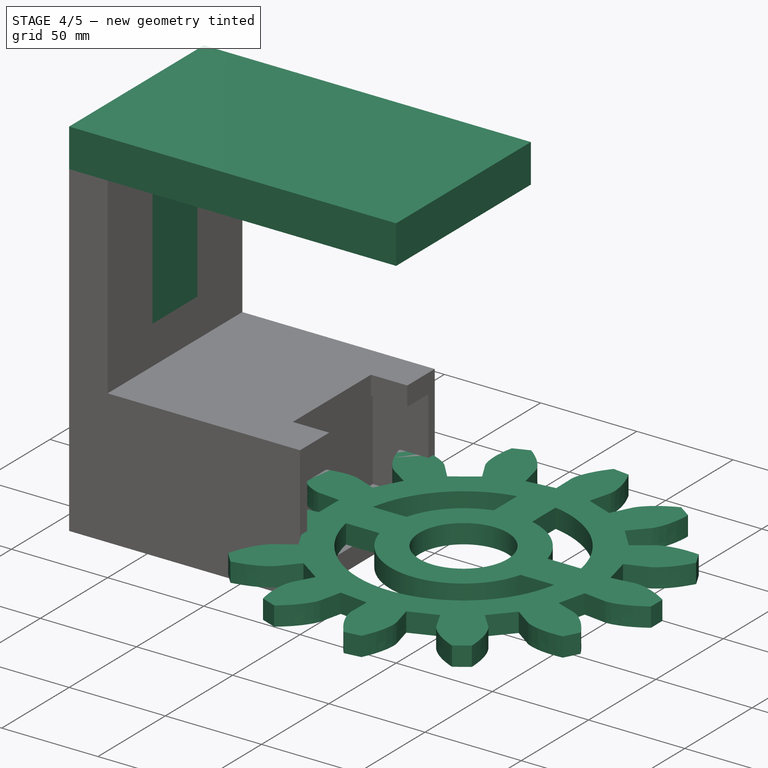
[diagram: stage 4 of 5 — iso view after this stage's code; geometry added in this stage tinted green]
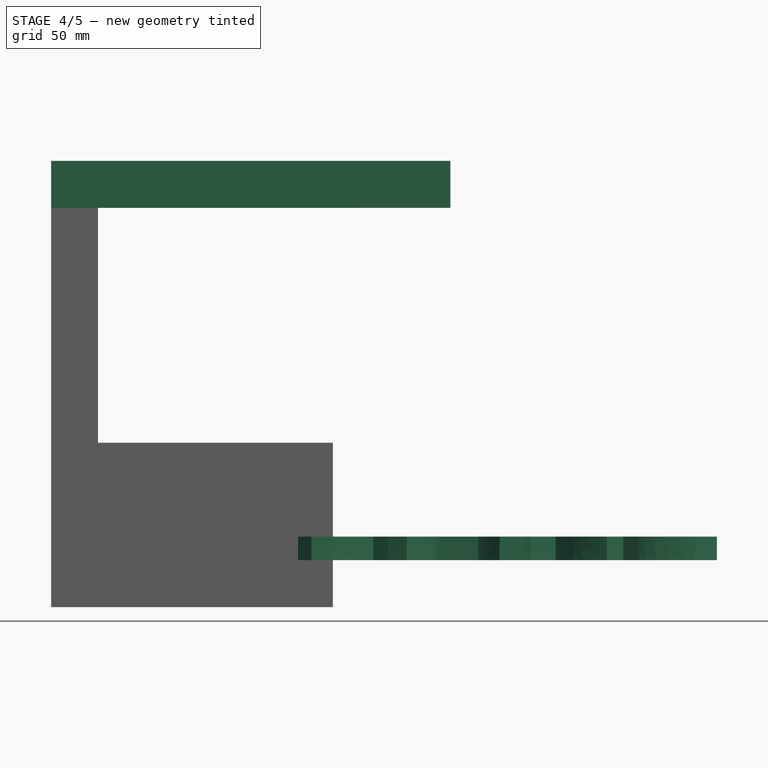
[diagram: stage 4 of 5 — front view after this stage's code; geometry added in this stage tinted green]
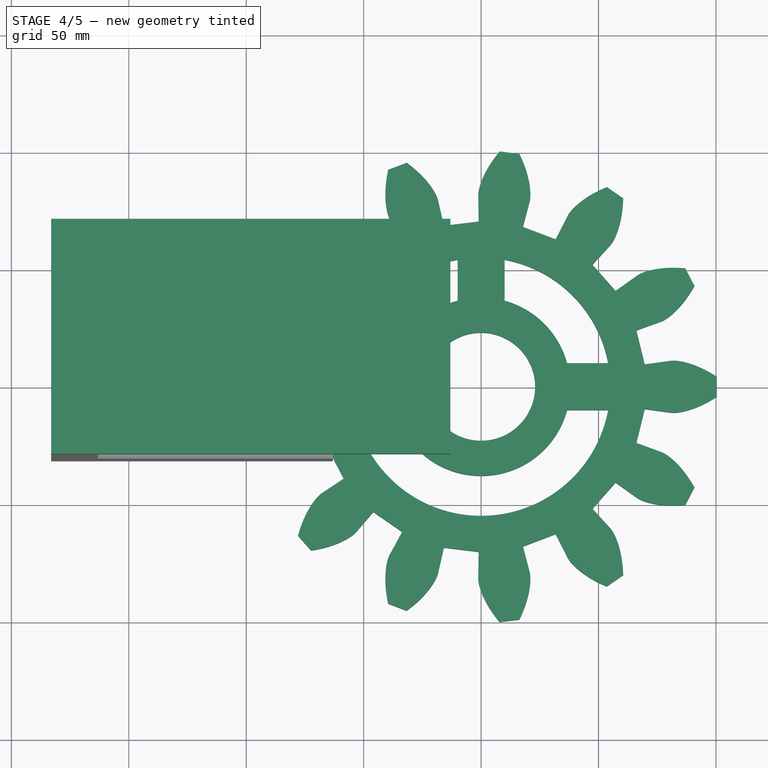
[diagram: stage 4 of 5 — top view after this stage's code; geometry added in this stage tinted green]
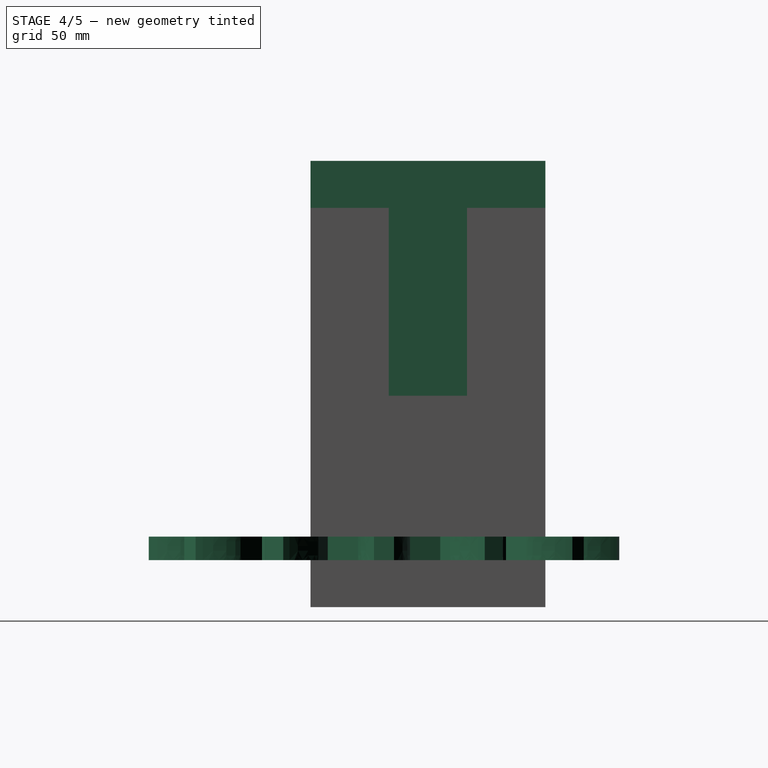
[diagram: stage 4 of 5 — right view after this stage's code; geometry added in this stage tinted green]
FEATURE [Part::Box] Box014  label="Cube011"
  AttacherType = Attacher::AttachEngine3D
  Height = 10
  Length = 20
  Placement = pos=(-10,36,0) rot=(0,0,1;0rad)
  Width = 20
FEATURE [Part::Box] Box015  label="Cube012"
  AttacherType = Attacher::AttachEngine3D
  Height = 10
  Length = 20
  Placement = pos=(-55,-10,0) rot=(0,0,1;0rad)
  Width = 20
FEATURE [Part::Box] Box016  label="Cube013"
  AttacherType = Attacher::AttachEngine3D
  Height = 10
  Length = 20
  Placement = pos=(36,-10,0) rot=(0,0,1;0rad)
  Width = 20
FEATURE [Part::Cylinder] Cylinder003
  Angle = 360
  AttacherType = Attacher::AttachEngine3D
  FirstAngle = 0
  Height = 10
  Radius = 55
  SecondAngle = 0
FEATURE [Part::FeaturePython] InvoluteGear002  # WARN: FeaturePython — macro-defined, semantics opaque (R4)
  AttacherType = Attacher::AttachEngine3D
  angular_backlash = 0
  backlash = 0
  beta = 0
  clearance = 0.25
  da = 201
  df = 140.7
  double_helix = false
  dw = 174.2
  head = 0
  head_fillet = 0
  height = 10
  module = 13.4
  numpoints = 6
  pressure_angle = 20
  properties_from_tool = false
  reversed_backlash = false
  root_fillet = 0
  shift = 0
  simple = false
  teeth = 13
  transverse_pitch = 42.0973
  traverse_module = 13.4
  undercut = false
  version = 0.0.4
  expr: angular_backlash = backlash / dw * 360° / pi
FEATURE [Part::Cut] Cut010
  Base = -> InvoluteGear002
  Tool = -> Cylinder003
FEATURE [Part::FeaturePython] Tube002  # WARN: FeaturePython — macro-defined, semantics opaque (R4)
  AttacherType = Attacher::AttachEngine3D
  Height = 10
  InnerRadius = 23
  OuterRadius = 38
FEATURE [Sketcher::SketchObject] Sketch017
  ExternalGeometry = -> [Cut015]
  FullyConstrained = true
  MapMode = 5
  Placement = pos=(0,0,150) rot=(0,0,1;0rad)
  Support = -> [Cut015]
  sketch-geometry (4):
    g0: LineSegment StartX=-183.1 StartY=-31.3 StartZ=0 EndX=-163.1 EndY=-31.3 EndZ=0
    g1: LineSegment StartX=-163.1 StartY=-31.3 StartZ=0 EndX=-163.1 EndY=68.7 EndZ=0
    g2: LineSegment StartX=-163.1 StartY=68.7 StartZ=0 EndX=-183.1 EndY=68.7 EndZ=0
    g3: LineSegment StartX=-183.1 StartY=68.7 StartZ=0 EndX=-183.1 EndY=-31.3 EndZ=0
  constraints (10):
    c: Coincident(g0,g1)
    c: Coincident(g1,g2)
    c: Coincident(g2,g3)
    c: Coincident(g3,g0)
    c: Horizontal(g0)
    c: Horizontal(g2)
    c: Vertical(g1)
    c: Vertical(g3)
    c: Coincident(g0,g-5)
    c: Coincident(g1,g-3)
FEATURE [Part::Extrusion] Extrude017
  Base = -> Sketch017
  Dir = (0,0,1)
  DirMode = 2
  FaceMakerClass = Part::FaceMakerBullseye
  LengthFwd = 20
  LengthRev = 0
  Solid = true
  Symmetric = false
FEATURE [Sketcher::SketchObject] Sketch018
  ExternalGeometry = -> [Extrude017]
  FullyConstrained = true
  MapMode = 5
  Placement = pos=(-163.1,0,0) rot=(0.57735,0.57735,0.57735;2.0944rad)
  Support = -> [Extrude017]
  sketch-geometry (4):
    g0: LineSegment StartX=68.7 StartY=170 StartZ=0 EndX=-31.3 EndY=170 EndZ=0
    g1: LineSegment StartX=-31.3 StartY=170 StartZ=0 EndX=-31.3 EndY=150 EndZ=0
    g2: LineSegment StartX=-31.3 StartY=150 StartZ=0 EndX=68.7 EndY=150 EndZ=0
    g3: LineSegment StartX=68.7 StartY=150 StartZ=0 EndX=68.7 EndY=170 EndZ=0
  constraints (10):
    c: Coincident(g0,g1)
    c: Coincident(g1,g2)
    c: Coincident(g2,g3)
    c: Coincident(g3,g0)
    c: Horizontal(g0)
    c: Horizontal(g2)
    c: Vertical(g1)
    c: Vertical(g3)
    c: Coincident(g0,g-3)
    c: Coincident(g1,g-4)
FEATURE [Part::Extrusion] Extrude018
  Base = -> Sketch018
  Dir = (1,0,0)
  DirMode = 2
  FaceMakerClass = Part::FaceMakerBullseye
  LengthFwd = 150
  LengthRev = 0
  Solid = true
  Symmetric = false
FEATURE [Sketcher::SketchObject] Sketch019
  ExternalGeometry = -> [Extrude017,Cut015]
  FullyConstrained = true
  MapMode = 5
  Placement = pos=(0,0,150) rot=(1,0,0;3.14159rad)
  Support = -> [Extrude017]
  sketch-geometry (4):
    g0: LineSegment StartX=-163.1 StartY=-35.3667 StartZ=0 EndX=-173.1 EndY=-35.3667 EndZ=0
    g1: LineSegment StartX=-173.1 StartY=-35.3667 StartZ=0 EndX=-173.1 EndY=-2.03333 EndZ=0
    g2: LineSegment StartX=-173.1 StartY=-2.03333 StartZ=0 EndX=-163.1 EndY=-2.03333 EndZ=0
    g3: LineSegment StartX=-163.1 StartY=-2.03333 StartZ=0 EndX=-163.1 EndY=-35.3667 EndZ=0
  constraints (10):
    c: Coincident(g0,g1)
    c: Coincident(g1,g2)
    c: Coincident(g2,g3)
    c: Coincident(g3,g0)
    c: Horizontal(g0)
    c: Horizontal(g2)
    c: Vertical(g1)
    c: Vertical(g3)
    c: Coincident(g0,g-4)
    c: Coincident(g1,g-5)
FEATURE [Part::Extrusion] Extrude019
  Base = -> Sketch019
  Dir = (0,0,-1)
  DirMode = 2
  FaceMakerClass = Part::FaceMakerBullseye
  LengthFwd = 80
  LengthRev = 0
  Solid = true
  Symmetric = false
FEATURE [Part::MultiFuse] Fusion012
  Shapes = -> [Extrude019,Extrude018,Extrude017]
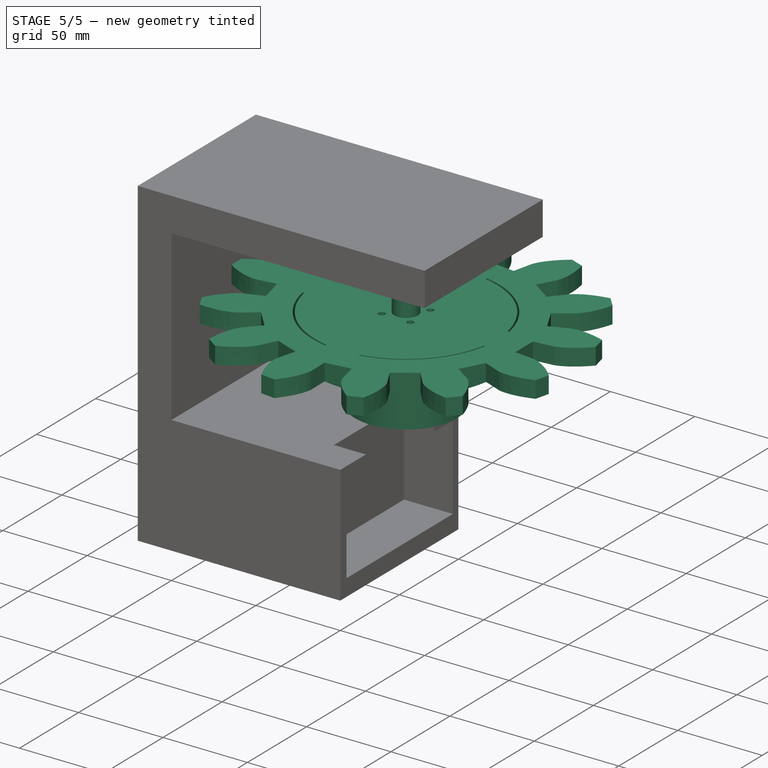
[diagram: stage 5 of 5 — iso view after this stage's code; geometry added in this stage tinted green]
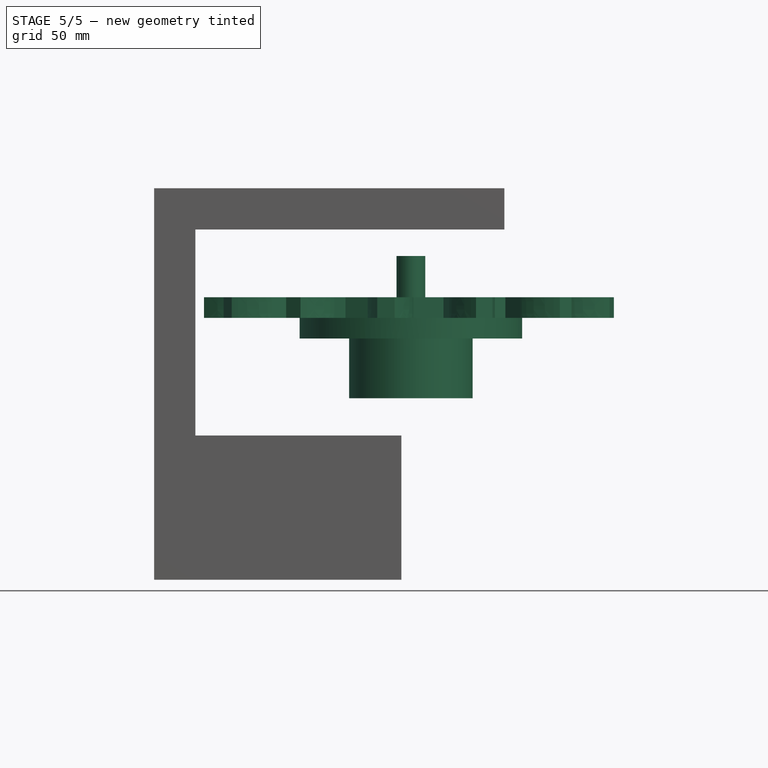
[diagram: stage 5 of 5 — front view after this stage's code; geometry added in this stage tinted green]
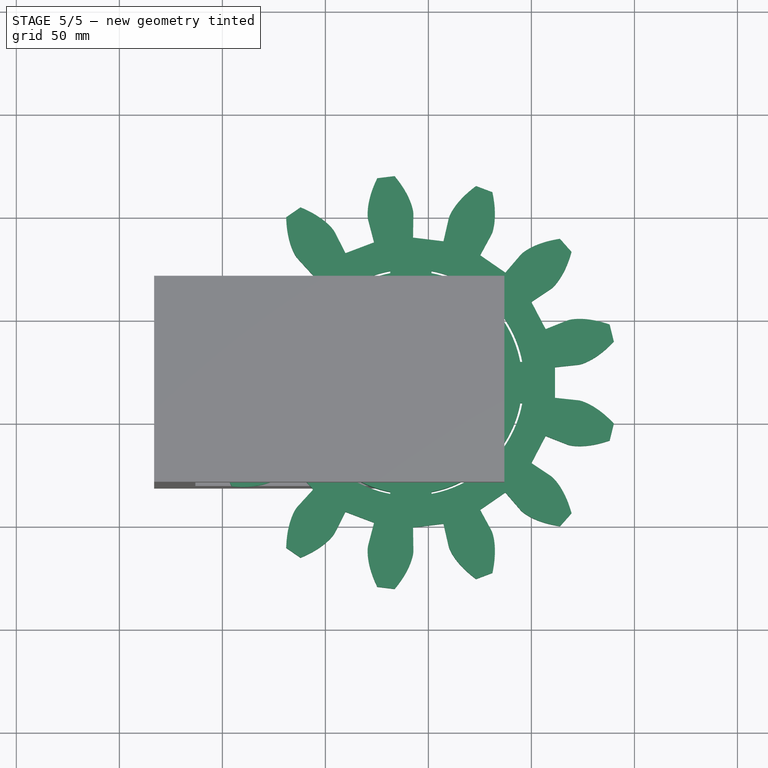
[diagram: stage 5 of 5 — top view after this stage's code; geometry added in this stage tinted green]
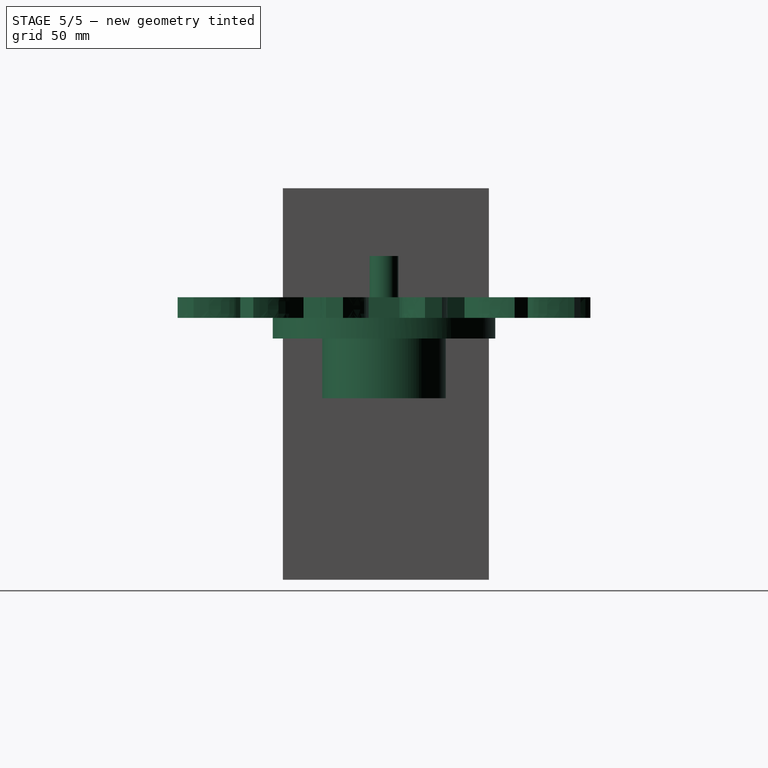
[diagram: stage 5 of 5 — right view after this stage's code; geometry added in this stage tinted green]
FEATURE [Part::Box] Box013  label="Cube010"
  AttacherType = Attacher::AttachEngine3D
  Height = 10
  Length = 20
  Placement = pos=(-10,-55,0) rot=(0,0,1;0rad)
  Width = 20
FEATURE [Sketcher::SketchObject] Sketch015
  FullyConstrained = true
  MapMode = 5
  Placement = pos=(0,0,-20) rot=(1,0,0;3.14159rad)
  sketch-geometry (5):
    g0: Circle CenterX=0 CenterY=0 CenterZ=0 NormalX=0 NormalY=0 NormalZ=1 AngleXU=0 Radius=3
    g1: ArcOfCircle CenterX=0 CenterY=0 CenterZ=0 NormalX=0 NormalY=0 NormalZ=1 AngleXU=0 Radius=3 StartAngle=1.0472 EndAngle=5.23599
    g2: LineSegment StartX=1.5 StartY=2.59808 StartZ=0 EndX=1.5 EndY=-9.583e-13 EndZ=0
    g3: LineSegment StartX=1.5 StartY=-9.583e-13 StartZ=0 EndX=1.5 EndY=-2.59808 EndZ=0
    g4: LineSegment StartX=1.5 StartY=-9.583e-13 StartZ=0 EndX=-3 EndY=-9.583e-13 EndZ=0
  constraints (14):
    c: Coincident(g0,g-1)
    c: Radius(g0) = 3
    c: Coincident(g1,g0)
    c: PointOnObject(g1,g0)
    c: Coincident(g2,g1)
    c: Coincident(g3,g1)
    c: Coincident(g2,g3)
    c: Equal(g2,g3)
    c: Parallel(g2,g3)
    c: Coincident(g4,g2)
    c: PointOnObject(g4,g1)
    c: Horizontal(g4)
    c: Distance(g4) = 4.5
    c: Perpendicular(g4,g2)
FEATURE [Part::Extrusion] Extrude015
  Base = -> Sketch015
  Dir = (0,0,-1)
  DirMode = 2
  FaceMakerClass = Part::FaceMakerBullseye
  LengthFwd = 0
  LengthRev = 6
  Solid = true
  Symmetric = false
FEATURE [Part::MultiFuse] Fusion009  label="MotorGear001"
  Shapes = -> [Tube002,Cut010,Box013,Box014,Box015,Box016]
FEATURE [Sketcher::SketchObject] Sketch012
  ExternalGeometry = -> [Fusion009]
  FullyConstrained = true
  MapMode = 5
  Placement = pos=(0,0,10) rot=(0,0,1;0rad)
  Support = -> [Fusion009]
  sketch-geometry (1):
    g0: Circle CenterX=0 CenterY=0 CenterZ=0 NormalX=0 NormalY=0 NormalZ=1 AngleXU=0 Radius=54
  constraints (2):
    c: Coincident(g0,g-3)
    c: Radius(g0) = 54
FEATURE [Part::Extrusion] Extrude012  label="gearHolder001"
  Base = -> Sketch012
  Dir = (0,0,1)
  DirMode = 2
  FaceMakerClass = Part::FaceMakerBullseye
  LengthFwd = 10
  LengthRev = 10
  Solid = true
  Symmetric = false
FEATURE [Sketcher::SketchObject] Sketch013
  FullyConstrained = true
  MapMode = 5
  Placement = pos=(0,0,20) rot=(0,0,1;0rad)
  Support = -> [Extrude012]
  sketch-geometry (1):
    g0: Circle CenterX=0 CenterY=0 CenterZ=0 NormalX=0 NormalY=0 NormalZ=1 AngleXU=0 Radius=30
  constraints (2):
    c: Coincident(g0,g-1)
    c: Radius(g0) = 30
FEATURE [Part::Extrusion] Extrude013  label="motorShaftHolder001"
  Base = -> Sketch013
  Dir = (0,0,1)
  DirMode = 2
  FaceMakerClass = Part::FaceMakerBullseye
  LengthFwd = 29
  LengthRev = 0
  Solid = true
  Symmetric = false
FEATURE [Sketcher::SketchObject] Sketch011  label="FlangeSketch001"
  FullyConstrained = true
  MapMode = 5
  Placement = pos=(0,0,49) rot=(0,0,1;0rad)
  Support = -> [Extrude013]
  sketch-geometry (12):
    g0: Circle CenterX=8.48528 CenterY=8.48528 CenterZ=0 NormalX=0 NormalY=0 NormalZ=1 AngleXU=0 Radius=2
    g1: LineSegment StartX=8.48528 StartY=0 StartZ=0 EndX=8.48528 EndY=8.48528 EndZ=0
    g2: LineSegment StartX=8.48528 StartY=8.48528 StartZ=0 EndX=0 EndY=8.48528 EndZ=0
    g3: Circle CenterX=8.48528 CenterY=-8.48528 CenterZ=0 NormalX=0 NormalY=0 NormalZ=1 AngleXU=0 Radius=2
    g4: LineSegment StartX=8.48528 StartY=0 StartZ=0 EndX=8.48528 EndY=-8.48528 EndZ=0
    g5: LineSegment StartX=8.48528 StartY=-8.48528 StartZ=0 EndX=0 EndY=-8.48528 EndZ=0
    g6: Circle CenterX=-8.48528 CenterY=-8.48528 CenterZ=0 NormalX=0 NormalY=0 NormalZ=1 AngleXU=0 Radius=2
    g7: Circle CenterX=-8.48528 CenterY=8.48528 CenterZ=0 NormalX=0 NormalY=0 NormalZ=1 AngleXU=0 Radius=2
    g8: LineSegment StartX=-8.48528 StartY=8.48528 StartZ=0 EndX=0 EndY=8.48528 EndZ=0
    g9: LineSegment StartX=0 StartY=-8.48528 StartZ=0 EndX=-8.48528 EndY=-8.48528 EndZ=0
    g10: LineSegment StartX=-8.48528 StartY=-8.48528 StartZ=0 EndX=-8.48528 EndY=0 EndZ=0
    g11: LineSegment StartX=-8.48528 StartY=8.48528 StartZ=0 EndX=-8.48528 EndY=0 EndZ=0
  constraints (34):
    c: Distance(g-1,g0) = 12
    c: Diameter(g0) = 4
    c: PointOnObject(g1,g-1)
    c: Coincident(g1,g0)
    c: Vertical(g1)
    c: Coincident(g2,g0)
    c: PointOnObject(g2,g-2)
    c: Horizontal(g2)
    c: Equal(g1,g2)
    c: PointOnObject(g4,g-1)
    c: Coincident(g4,g3)
    c: Vertical(g4)
    c: Coincident(g5,g3)
    c: PointOnObject(g5,g-2)
    c: Horizontal(g5)
    c: Coincident(g8,g7)
    c: PointOnObject(g8,g-2)
    c: Horizontal(g8)
    c: Diameter(g3) = 4
    c: Diameter(g6) = 4
    c: Diameter(g7) = 4
    c: Distance(g-1,g7) = 12
    c: Distance(g-1,g6) = 12
    c: Distance(g-1,g3) = 12
    c: Equal(g5,g4)
    c: Coincident(g9,g5)
    c: Coincident(g9,g6)
    c: Horizontal(g9)
    c: Coincident(g10,g6)
    c: PointOnObject(g10,g-1)
    c: Vertical(g10)
    c: Coincident(g11,g7)
    c: Coincident(g11,g10)
    c: Vertical(g11)
FEATURE [Part::Extrusion] Extrude011  label="FlangeExtrude001"
  Base = -> Sketch011
  Dir = (0,0,1)
  DirMode = 2
  FaceMakerClass = Part::FaceMakerBullseye
  LengthFwd = 0
  LengthRev = 50
  Solid = true
  Symmetric = false
FEATURE [Sketcher::SketchObject] Sketch014
  FullyConstrained = true
  MapMode = 5
  Placement = pos=(0,0,0) rot=(1,0,0;3.14159rad)
  Support = -> [Extrude012]
  sketch-geometry (1):
    g0: Circle CenterX=0 CenterY=0 CenterZ=0 NormalX=0 NormalY=0 NormalZ=1 AngleXU=0 Radius=7
  constraints (2):
    c: Coincident(g0,g-1)
    c: Radius(g0) = 7
FEATURE [Part::Extrusion] Extrude014  label="encoderHolder001"
  Base = -> Sketch014
  Dir = (0,0,-1)
  DirMode = 2
  FaceMakerClass = Part::FaceMakerBullseye
  LengthFwd = 20
  LengthRev = 0
  Solid = true
  Symmetric = false
FEATURE [Part::MultiFuse] Fusion008
  Shapes = -> [Extrude012,Extrude013,Extrude014]
FEATURE [Part::Cut] Cut009
  Base = -> Fusion008
  Tool = -> Extrude011
FEATURE [Part::MultiFuse] Fusion010
  Shapes = -> [Cut009,Fusion009]
FEATURE [Part::Cut] Cut014  label="GearAdapter"
  Base = -> Fusion010
  Placement = pos=(-58.5,17.8,117.1) rot=(0,1,0;3.14159rad)
  Tool = -> Extrude015
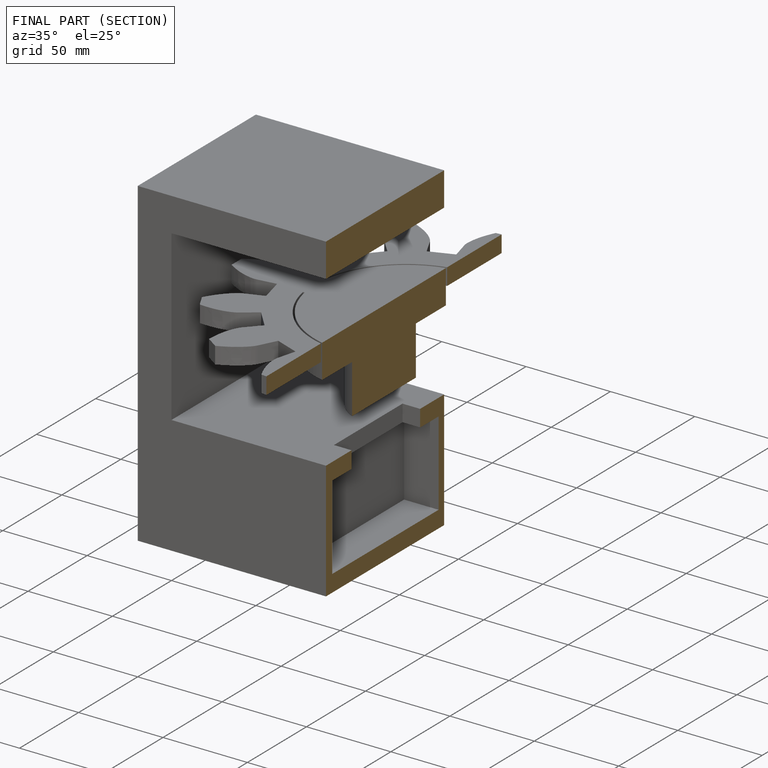
[diagram: finished part — half-section view (interior)]
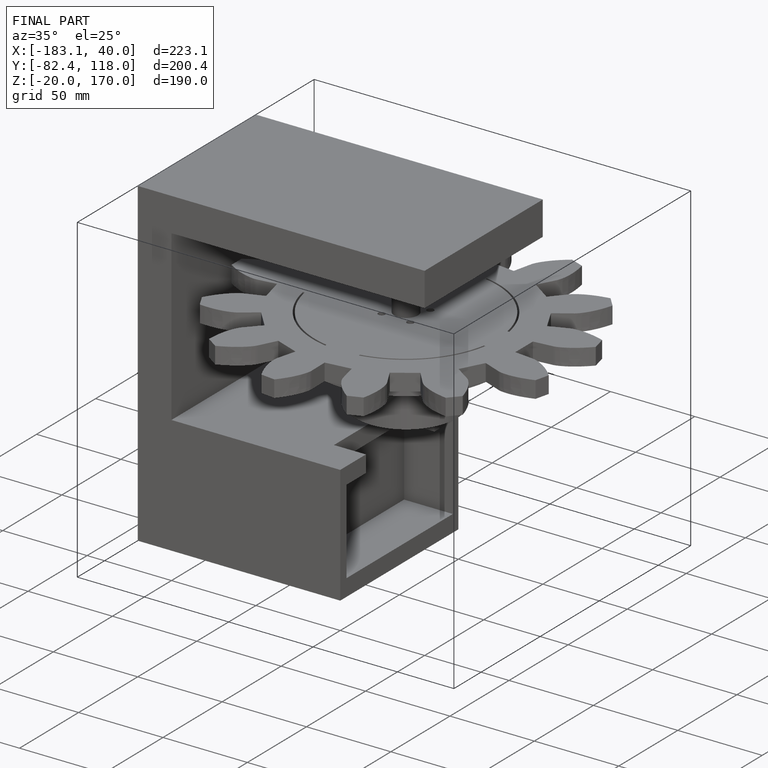
[diagram: finished part — iso view with bounding-box wireframe]
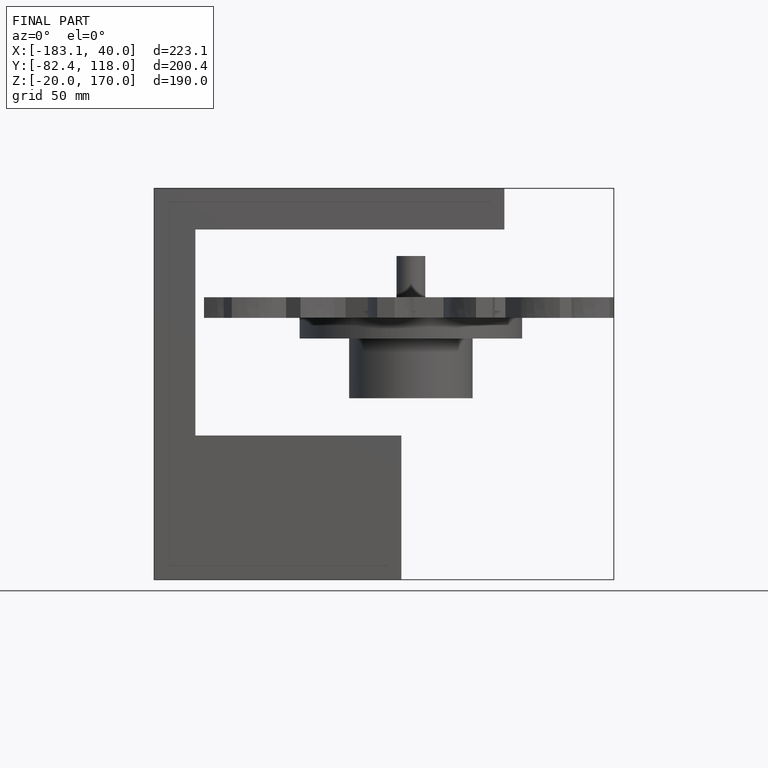
[diagram: finished part — front view with bounding-box wireframe]
